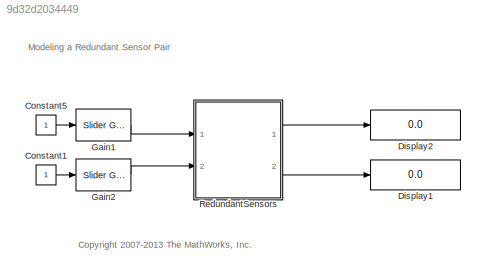
MODEL slx_9d32d2034449
KIND model
CONFIG AbsTol = auto
CONFIG EnableMultiTasking = on
CONFIG FixedStep = 1
CONFIG MaxStep = auto
CONFIG MinStep = auto
CONFIG RelTol = 1e-3
CONFIG SampleTimeConstraint = Unconstrained
CONFIG Solver = FixedStepDiscrete
CONFIG SolverName = FixedStepDiscrete
CONFIG StartTime = 0.0
CONFIG StopTime = Inf
BLOCK [Constant] Constant1
BLOCK [Constant] Constant5
BLOCK [Display] Display1
  Decimation = 1
  Ports = [1]
BLOCK [Display] Display2
  Decimation = 1
  Ports = [1]
BLOCK [Reference] Gain1  REF=simulink/Math
Operations/Slider
Gain
  Ports = [1, 1]
  SourceBlock = simulink/Math\nOperations/Slider\nGain
  SourceProductBaseCode = SL
  SourceProductName = Simulink
  SourceType = Slider Gain
BLOCK [Reference] Gain2  REF=simulink/Math
Operations/Slider
Gain
  Ports = [1, 1]
  SourceBlock = simulink/Math\nOperations/Slider\nGain
  SourceProductBaseCode = SL
  SourceProductName = Simulink
  SourceType = Slider Gain
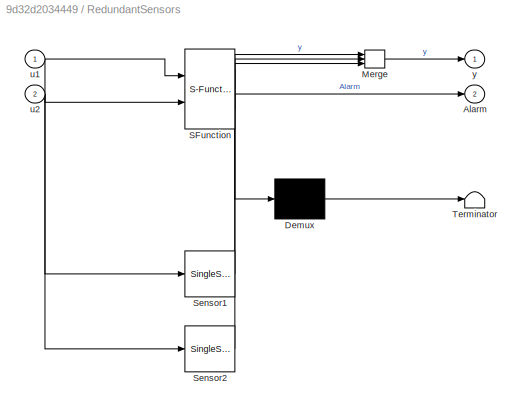
BLOCK [SubSystem] RedundantSensors
  ErrorFcn = Stateflow.Translate.translate
  PermitHierarchicalResolution = ExplicitOnly
  Ports = [2, 2]
  RequestExecContextInheritance = off
  SFBlockType = Chart
  TreatAsAtomicUnit = on
  Variant = off
BLOCK [Outport] RedundantSensors/ Alarm
  IconDisplay = Port number
  Port = 2
BLOCK [Demux] RedundantSensors/ Demux 
  Outputs = 1
  Ports = [1, 1]
BLOCK [Merge] RedundantSensors/ Merge 
  Inputs = 3
  Ports = [3, 1]
BLOCK [S-Function] RedundantSensors/ SFunction 
  EnableBusSupport = off
  FunctionName = sf_sfun
  PortCounts = [2 3]
  Ports = [2, 3]
  SFcnIsStateOwnerBlock = off
  SFunctionDeploymentMode = off
  Tag = Stateflow S-Function sf_atomic_sensor_pair 1
BLOCK [Terminator] RedundantSensors/ Terminator 
BLOCK [Reference] RedundantSensors/Sensor1  REF=sf_atomic_sensor_lib/SingleSensor  (lib defined in slx_e748a4eac7ab)
  Ports = [1, 1]
  SourceBlock = sf_atomic_sensor_lib/SingleSensor
  SourceProductBaseCode = SF
  SourceProductName = Stateflow
BLOCK [Reference] RedundantSensors/Sensor2  REF=sf_atomic_sensor_lib/SingleSensor  (lib defined in slx_e748a4eac7ab)
  Ports = [1, 1]
  SourceBlock = sf_atomic_sensor_lib/SingleSensor
  SourceProductBaseCode = SF
  SourceProductName = Stateflow
BLOCK [Inport] RedundantSensors/u1
  IconDisplay = Port number
BLOCK [Inport] RedundantSensors/u2
  IconDisplay = Port number
  Port = 2
BLOCK [Outport] RedundantSensors/y
  IconDisplay = Port number
ANNOTATION (root): <copyright redacted>
ANNOTATION (root): Modeling a Redundant Sensor Pair
LINE Constant1:1 -> Gain2:1
LINE Constant5:1 -> Gain1:1
LINE Gain1:1 -> RedundantSensors:1
LINE Gain2:1 -> RedundantSensors:2
LINE RedundantSensors:1 -> Display2:1
LINE RedundantSensors:2 -> Display1:1
CHART RedundantSensors states=3 transitions=3
  STATE_LABEL 'Sensor1'
  STATE_LABEL 'Sensor2'
  STATE_LABEL 'Alarm\nen, du: y = 0;'
